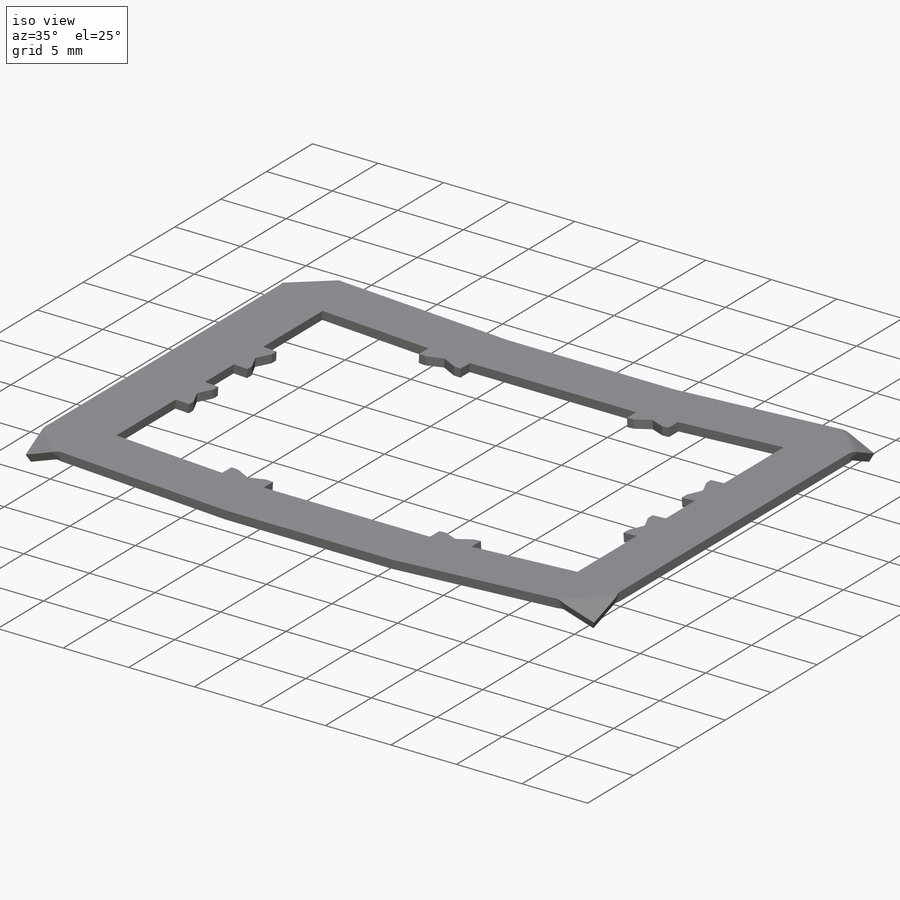
[diagram: iso view]
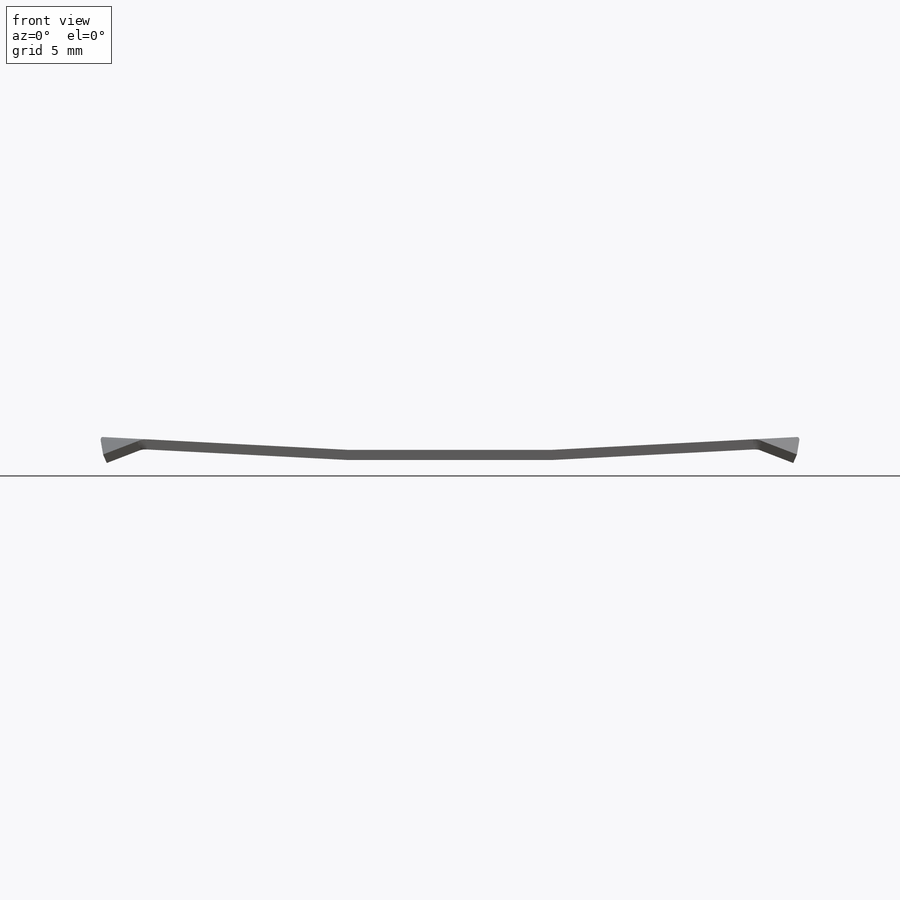
[diagram: front view]
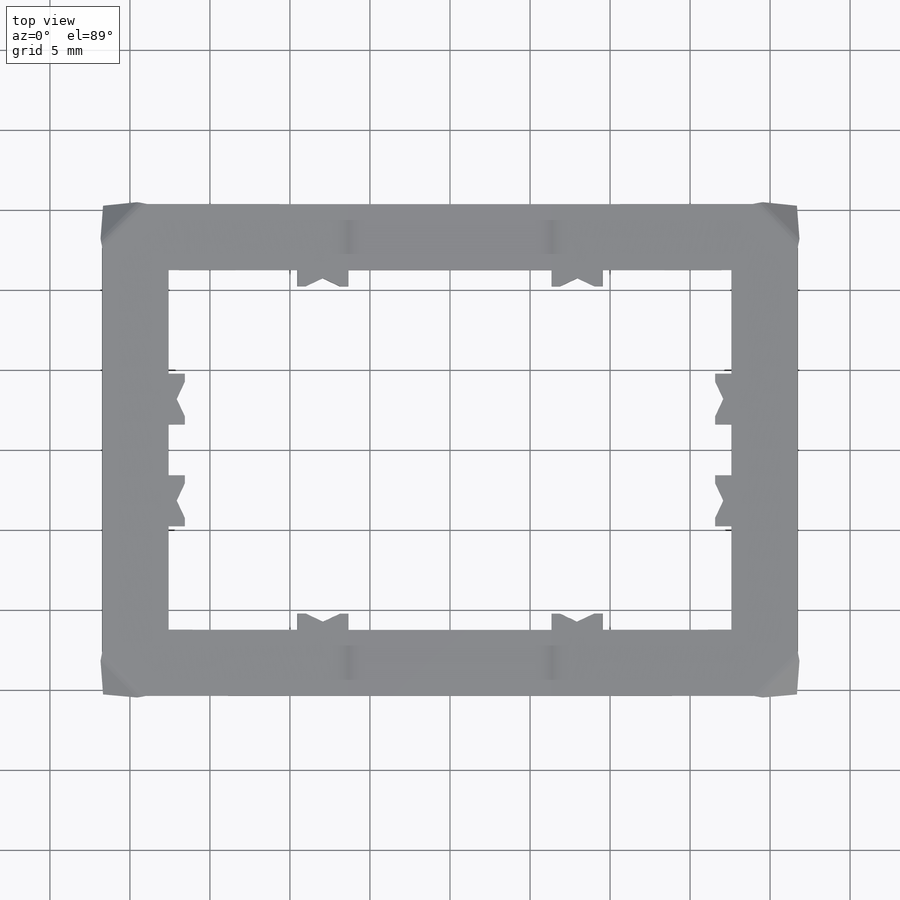
[diagram: top view]
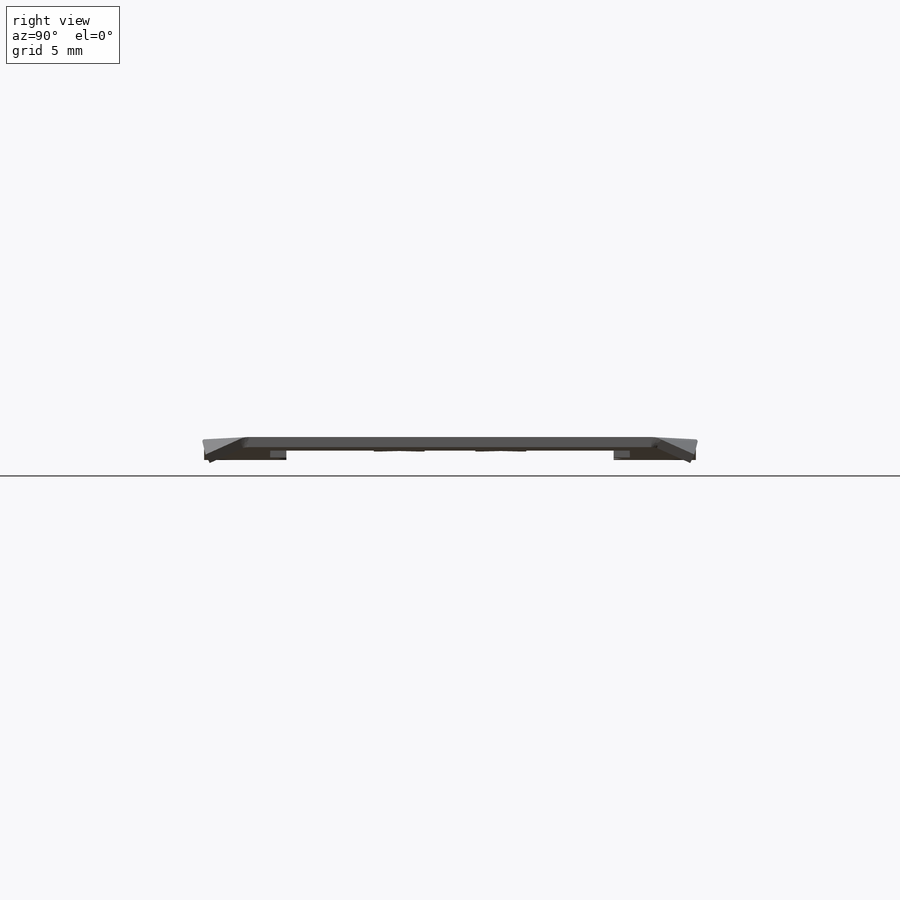
[diagram: right view]
SOLIDWORKS PART (.sldprt)
format: sldprt  version: not decoded by parser v0  size: 573,440 bytes
history: native  units: mm
features: sketch x11, mirror x6, cut_extrude x3, sheet_metal_op x2, material x1, extrude x1 + 1 further entry (+11 scaffold rows collapsed; 1 parser-record rows omitted)
feature tree (37):
  scaffold x11  (default folders/planes/origin — collapsed)
  material  "Material <not specified>"
  sketch  "Sketch1"  dims[c1.D1=12.7mm c1.D2=43.434mm c1.D3=~24.716136mm c2.D3=3.0deg c2.D4=19.05mm c3.D4=3.0deg c3.D5=22.225mm c3.D1=30.734mm c3.D6=1.0mm c3.D7=5.0mm]
  sketch  "Sketch2"  dims[D1=17.5895mm D2=22.479mm D3=11.2395mm D4=27.94mm]
  cut_extrude  "Extrude1"  Depth=2.54mm
  sketch  "Sketch3"  dims[D1=17.5895mm D2=2.54mm]
  cut_extrude  "Extrude2"  Depth=2.54mm
  sheet_metal_op  "Sheet-Metal1"
  sketch  "Sharp-Sketch1"  dims[c1.SharpBend1=0.0 c1.D1=0.0mm c1.D4=3.0deg c1.D5=2.0 c1.D8=0.0mm c1.D9=0.0mm c2.D1=0.0mm]
  sketch  "Flat-Sketch1"  dims[D1=0.0mm]
  sketch  "Sketch7"  dims[D1=2.54mm D2=2.54mm D3=2.54mm]
  parser-record x1  (decoder bookkeeping rows leaked as tree rows — omitted from the tree; the rows remain in map.json)
  sketch  "Sketch8"  dims[D1=2.54mm D2=2.54mm D3=2.54mm]
  sheet_metal_op  "Sketched Bend2"  SketchBend3=0 SketchBend4=0
  sketch  "Sketch11"  dims[D1=1.016mm D2=0.508mm D3=3.175mm D4=2.159mm D5=3.175mm D6=1.016mm D7=0.508mm D8=2.159mm D9=3.175mm]
  extrude  "Extrude5"  [1 undecoded]
  mirror  "Mirror5"
  sketch  "Sketch12"
  cut_extrude  "Extrude6"  [1 undecoded]
  "Flat-Pattern1"
  sketch  "Bend-Lines1"
  sketch  "Bounding-Box1"
  mirror  "Flatten-<SharpBend2>1"
  mirror  "Flatten-<SketchBend1>1"
  mirror  "Flatten-<SketchBend2>1"
  mirror  "Flatten-<SketchBend3>1"
  mirror  "Flatten-<SketchBend4>1"
decode coverage: 11 of 23 modeling features carry decoded parameters; 1 rows unclassified (native names shown)
note: ~ marks probable driven/reference dimensions
note: 2 parameter values undecoded
note: suppression state not decoded; provenance and decode notes live in map.json
